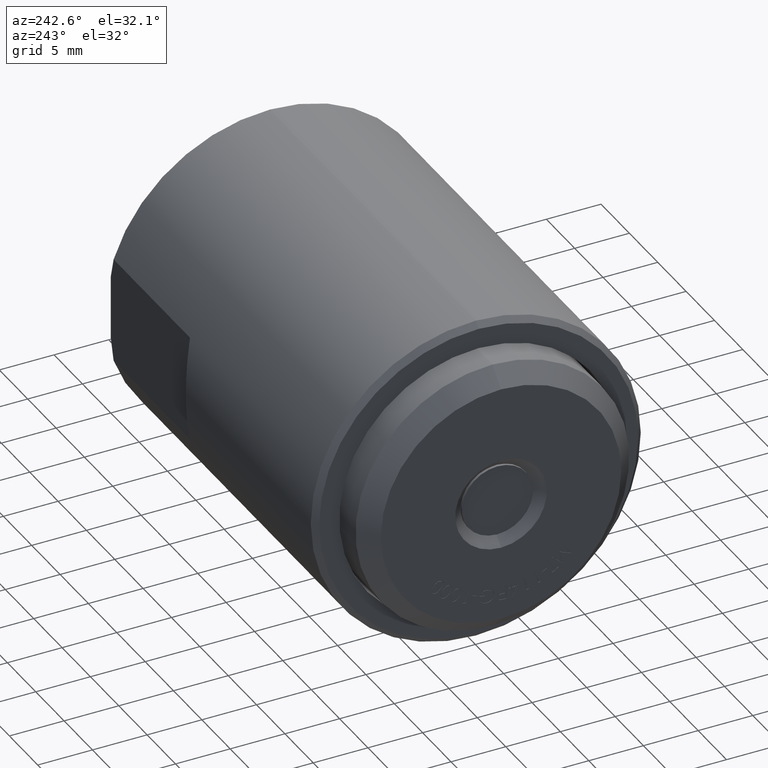
[diagram: clean part render]
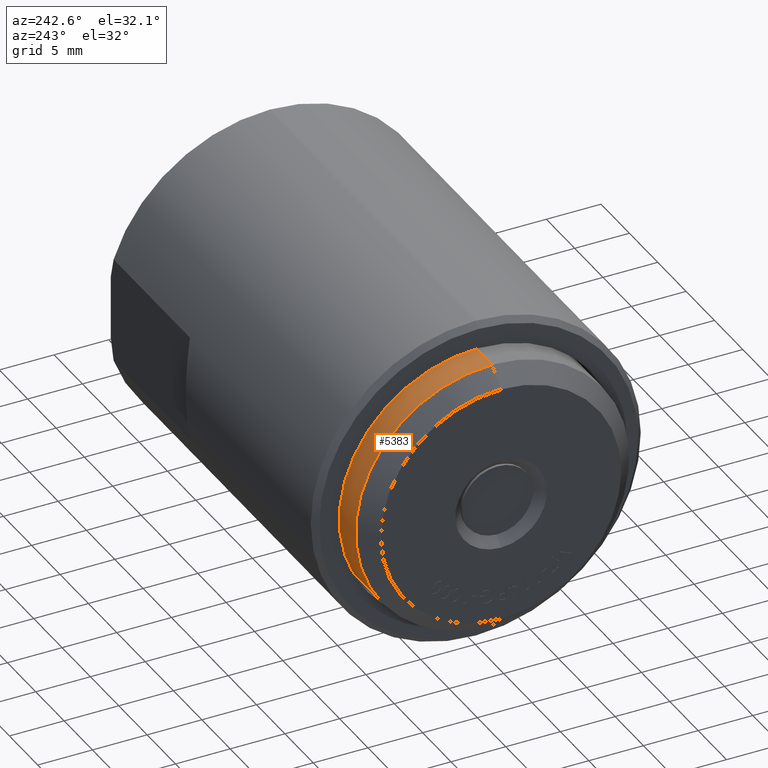
[diagram: same view with one face highlighted and labeled with its STEP entity id]
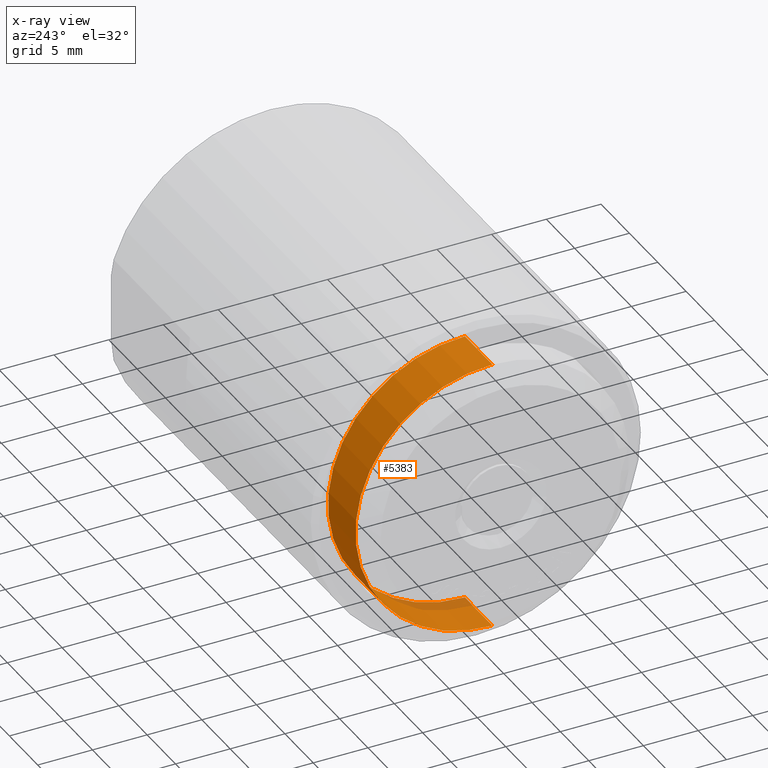
[diagram: x-ray of the same camera — body ghosted, the highlighted face saturated]
A machine part, auxiliary view. The second image highlights one B-rep face of the part: STEP entity #5383.
The next image is the same camera in x-ray: the body ghosted, the highlighted face saturated — about 5% of this face is hidden behind the body in this view.
In plain terms, the highlighted cylindrical surface (partial cylindrical patch) has radius 12.5095 mm, axis along (-1, -0, -0).
Its self-contained STEP definition (entity closure, byte-faithful):
#250 = ORIENTED_EDGE ( 'NONE', *, *, #7574, .F. ) ;
#438 = AXIS2_PLACEMENT_3D ( 'NONE', #10226, #1929, #3714 ) ;
#523 = CARTESIAN_POINT ( 'NONE',  ( 0.0000000000000000000, 6.031385485800715365E-17, -0.4924999999999999933 ) ) ;
#618 = CARTESIAN_POINT ( 'NONE',  ( -0.1240000000000000130, 6.031385485800715365E-17, -0.4924999999999999933 ) ) ;
#704 = DIRECTION ( 'NONE',  ( -1.000000000000000000, -0.0000000000000000000, -0.0000000000000000000 ) ) ;
#956 = CARTESIAN_POINT ( 'NONE',  ( -0.3150000000000000577, 0.0000000000000000000, 0.4925000000000000488 ) ) ;
#1048 = VERTEX_POINT ( 'NONE', #8160 ) ;
#1293 = DIRECTION ( 'NONE',  ( -1.000000000000000000, -0.0000000000000000000, -0.0000000000000000000 ) ) ;
#1441 = LINE ( 'NONE', #523, #6956 ) ;
#1929 = DIRECTION ( 'NONE',  ( -1.000000000000000000, -0.0000000000000000000, -0.0000000000000000000 ) ) ;
#2306 = ORIENTED_EDGE ( 'NONE', *, *, #3120, .T. ) ;
#2330 = LINE ( 'NONE', #11656, #7184 ) ;
#2781 = CIRCLE ( 'NONE', #438, 0.4924999999999999933 ) ;
#2836 = FACE_OUTER_BOUND ( 'NONE', #6000, .T. ) ;
#3120 = EDGE_CURVE ( 'NONE', #1048, #11697, #2781, .T. ) ;
#3234 = VERTEX_POINT ( 'NONE', #956 ) ;
#3714 = DIRECTION ( 'NONE',  ( 0.0000000000000000000, 0.0000000000000000000, 1.000000000000000000 ) ) ;
#4616 = CYLINDRICAL_SURFACE ( 'NONE', #8297, 0.4924999999999999933 ) ;
#4665 = CIRCLE ( 'NONE', #5444, 0.4925000000000000488 ) ;
#5257 = DIRECTION ( 'NONE',  ( -1.000000000000000000, -0.0000000000000000000, -0.0000000000000000000 ) ) ;
#5383 = ADVANCED_FACE ( 'NONE', ( #2836 ), #4616, .T. ) ;
#5444 = AXIS2_PLACEMENT_3D ( 'NONE', #6168, #5257, #8988 ) ;
#6000 = EDGE_LOOP ( 'NONE', ( #2306, #6251, #250, #11266 ) ) ;
#6168 = CARTESIAN_POINT ( 'NONE',  ( -0.3150000000000000577, 0.0000000000000000000, 0.0000000000000000000 ) ) ;
#6251 = ORIENTED_EDGE ( 'NONE', *, *, #6306, .T. ) ;
#6306 = EDGE_CURVE ( 'NONE', #11697, #6871, #1441, .T. ) ;
#6370 = DIRECTION ( 'NONE',  ( 0.0000000000000000000, 0.0000000000000000000, 1.000000000000000000 ) ) ;
#6592 = CARTESIAN_POINT ( 'NONE',  ( -0.3150000000000000577, 6.031385485800716598E-17, -0.4925000000000001599 ) ) ;
#6871 = VERTEX_POINT ( 'NONE', #6592 ) ;
#6956 = VECTOR ( 'NONE', #10646, 39.37007874015748143 ) ;
#7184 = VECTOR ( 'NONE', #1293, 39.37007874015748143 ) ;
#7574 = EDGE_CURVE ( 'NONE', #3234, #6871, #4665, .T. ) ;
#8160 = CARTESIAN_POINT ( 'NONE',  ( -0.1240000000000000130, 0.0000000000000000000, 0.4924999999999999933 ) ) ;
#8297 = AXIS2_PLACEMENT_3D ( 'NONE', #9070, #704, #6370 ) ;
#8988 = DIRECTION ( 'NONE',  ( 0.0000000000000000000, 0.0000000000000000000, 1.000000000000000000 ) ) ;
#9070 = CARTESIAN_POINT ( 'NONE',  ( 0.0000000000000000000, 0.0000000000000000000, 0.0000000000000000000 ) ) ;
#9216 = EDGE_CURVE ( 'NONE', #1048, #3234, #2330, .T. ) ;
#10226 = CARTESIAN_POINT ( 'NONE',  ( -0.1240000000000000130, 0.0000000000000000000, 0.0000000000000000000 ) ) ;
#10646 = DIRECTION ( 'NONE',  ( -1.000000000000000000, -0.0000000000000000000, -0.0000000000000000000 ) ) ;
#11266 = ORIENTED_EDGE ( 'NONE', *, *, #9216, .F. ) ;
#11656 = CARTESIAN_POINT ( 'NONE',  ( 0.0000000000000000000, 0.0000000000000000000, 0.4924999999999999933 ) ) ;
#11697 = VERTEX_POINT ( 'NONE', #618 ) ;